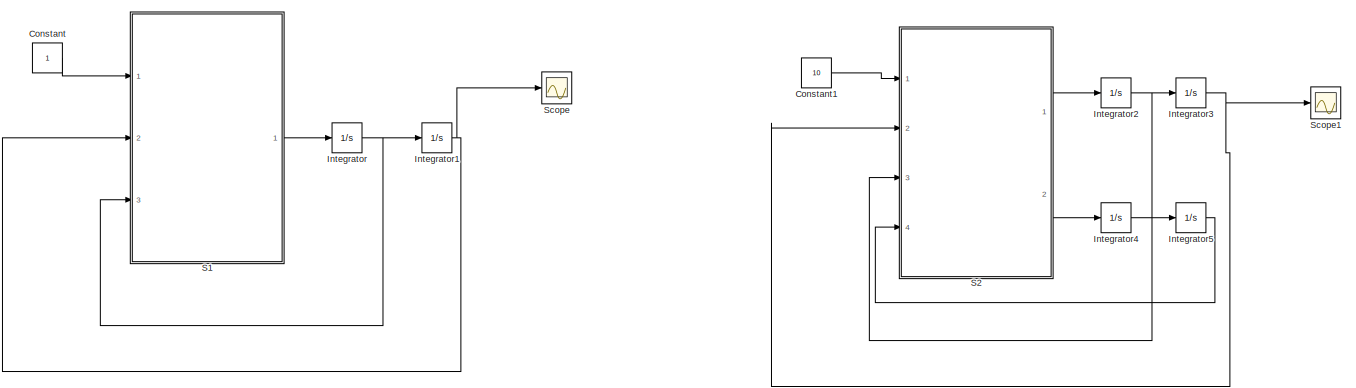
[diagram: root canvas - part 1/3, top left region]
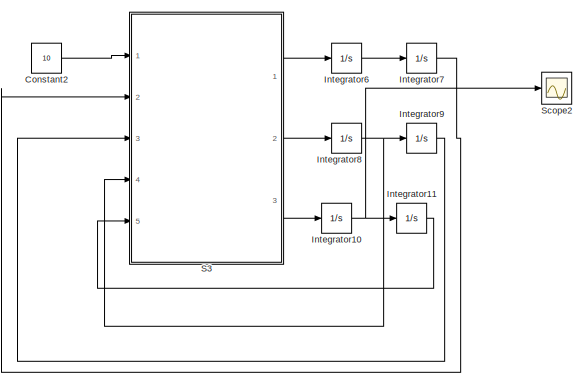
[diagram: root canvas - part 2/3, top right region]
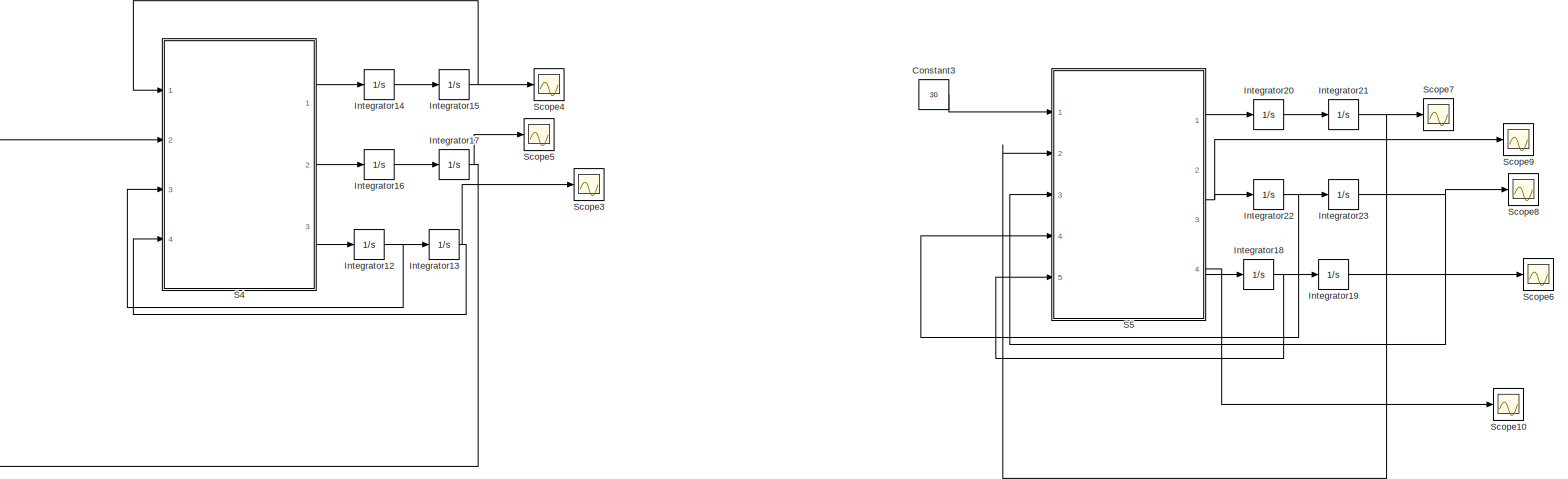
[diagram: root canvas - part 3/3, bottom center region]
MODEL slx_5a770979813c
KIND model
CONFIG AbsTol = auto
CONFIG EnableMultiTasking = off
CONFIG FixedStep = auto
CONFIG MaxStep = auto
CONFIG MinStep = auto
CONFIG RelTol = 1e-3
CONFIG SampleTimeConstraint = Unconstrained
CONFIG Solver = VariableStepAuto
CONFIG SolverName = VariableStepAuto
CONFIG StartTime = 0.0
CONFIG StopTime = 400
BLOCK [Constant] Constant
BLOCK [Constant] Constant1
  Value = 10
BLOCK [Constant] Constant2
  Value = 10
BLOCK [Constant] Constant3
  Value = 30
BLOCK [Integrator] Integrator
  Ports = [1, 1]
BLOCK [Integrator] Integrator1
  Ports = [1, 1]
BLOCK [Integrator] Integrator10
  Ports = [1, 1]
BLOCK [Integrator] Integrator11
  Ports = [1, 1]
BLOCK [Integrator] Integrator12
  Ports = [1, 1]
BLOCK [Integrator] Integrator13
  Ports = [1, 1]
BLOCK [Integrator] Integrator14
  Ports = [1, 1]
BLOCK [Integrator] Integrator15
  Ports = [1, 1]
BLOCK [Integrator] Integrator16
  Ports = [1, 1]
BLOCK [Integrator] Integrator17
  Ports = [1, 1]
BLOCK [Integrator] Integrator18
  Ports = [1, 1]
BLOCK [Integrator] Integrator19
  Ports = [1, 1]
BLOCK [Integrator] Integrator2
  Ports = [1, 1]
BLOCK [Integrator] Integrator20
  Ports = [1, 1]
BLOCK [Integrator] Integrator21
  Ports = [1, 1]
BLOCK [Integrator] Integrator22
  Ports = [1, 1]
BLOCK [Integrator] Integrator23
  Ports = [1, 1]
BLOCK [Integrator] Integrator3
  Ports = [1, 1]
BLOCK [Integrator] Integrator4
  Ports = [1, 1]
BLOCK [Integrator] Integrator5
  Ports = [1, 1]
BLOCK [Integrator] Integrator6
  Ports = [1, 1]
BLOCK [Integrator] Integrator7
  Ports = [1, 1]
BLOCK [Integrator] Integrator8
  Ports = [1, 1]
BLOCK [Integrator] Integrator9
  Ports = [1, 1]
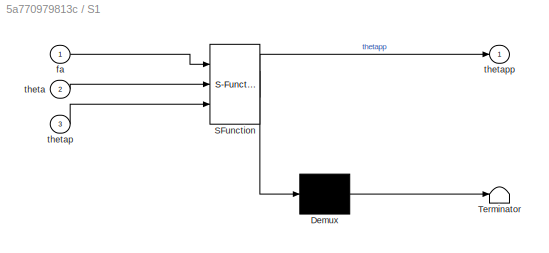
BLOCK [SubSystem] S1
  ErrorFcn = Stateflow.Translate.translate
  PermitHierarchicalResolution = ExplicitOnly
  Ports = [3, 1]
  RequestExecContextInheritance = off
  SFBlockType = MATLAB Function
  TreatAsAtomicUnit = on
BLOCK [Demux] S1/ Demux 
  Outputs = 1
  Ports = [1, 1]
BLOCK [S-Function] S1/ SFunction 
  EnableBusSupport = on
  FunctionName = sf_sfun
  PortCounts = [3 2]
  Ports = [3, 2]
  SFcnIsStateOwnerBlock = off
  SFunctionDeploymentMode = off
  Tag = Stateflow S-Function sistemas_tarea2 2
BLOCK [Terminator] S1/ Terminator 
BLOCK [Inport] S1/fa
  IconDisplay = Port number
BLOCK [Inport] S1/theta
  IconDisplay = Port number
  Port = 2
BLOCK [Inport] S1/thetap
  IconDisplay = Port number
  Port = 3
BLOCK [Outport] S1/thetapp
  IconDisplay = Port number
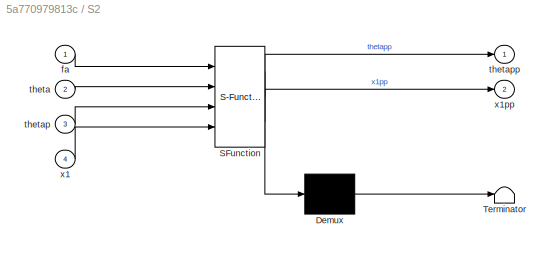
BLOCK [SubSystem] S2
  ErrorFcn = Stateflow.Translate.translate
  PermitHierarchicalResolution = ExplicitOnly
  Ports = [4, 2]
  RequestExecContextInheritance = off
  SFBlockType = MATLAB Function
  TreatAsAtomicUnit = on
BLOCK [Demux] S2/ Demux 
  Outputs = 1
  Ports = [1, 1]
BLOCK [S-Function] S2/ SFunction 
  EnableBusSupport = on
  FunctionName = sf_sfun
  PortCounts = [4 3]
  Ports = [4, 3]
  SFcnIsStateOwnerBlock = off
  SFunctionDeploymentMode = off
  Tag = Stateflow S-Function sistemas_tarea2 1
BLOCK [Terminator] S2/ Terminator 
BLOCK [Inport] S2/fa
  IconDisplay = Port number
BLOCK [Inport] S2/theta
  IconDisplay = Port number
  Port = 2
BLOCK [Inport] S2/thetap
  IconDisplay = Port number
  Port = 3
BLOCK [Outport] S2/thetapp
  IconDisplay = Port number
BLOCK [Inport] S2/x1
  IconDisplay = Port number
  Port = 4
BLOCK [Outport] S2/x1pp
  IconDisplay = Port number
  Port = 2
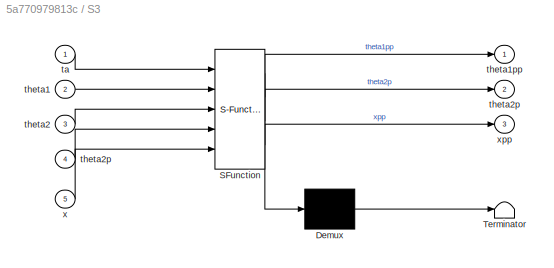
BLOCK [SubSystem] S3
  ErrorFcn = Stateflow.Translate.translate
  PermitHierarchicalResolution = ExplicitOnly
  Ports = [5, 3]
  RequestExecContextInheritance = off
  SFBlockType = MATLAB Function
  TreatAsAtomicUnit = on
BLOCK [Demux] S3/ Demux 
  Outputs = 1
  Ports = [1, 1]
BLOCK [S-Function] S3/ SFunction 
  EnableBusSupport = on
  FunctionName = sf_sfun
  PortCounts = [5 4]
  Ports = [5, 4]
  SFcnIsStateOwnerBlock = off
  SFunctionDeploymentMode = off
  Tag = Stateflow S-Function sistemas_tarea2 3
BLOCK [Terminator] S3/ Terminator 
BLOCK [Inport] S3/ta
  IconDisplay = Port number
BLOCK [Inport] S3/theta1
  IconDisplay = Port number
  Port = 2
BLOCK [Outport] S3/theta1pp
  IconDisplay = Port number
BLOCK [Inport] S3/theta2
  IconDisplay = Port number
  Port = 3
BLOCK [Outport] S3/theta2p
  IconDisplay = Port number
  Port = 2
BLOCK [Inport] S3/theta2p 
  IconDisplay = Port number
  Port = 4
BLOCK [Inport] S3/x
  IconDisplay = Port number
  Port = 5
BLOCK [Outport] S3/xpp
  IconDisplay = Port number
  Port = 3
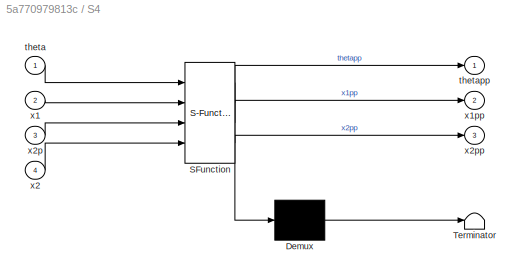
BLOCK [SubSystem] S4
  ErrorFcn = Stateflow.Translate.translate
  PermitHierarchicalResolution = ExplicitOnly
  Ports = [4, 3]
  RequestExecContextInheritance = off
  SFBlockType = MATLAB Function
  TreatAsAtomicUnit = on
BLOCK [Demux] S4/ Demux 
  Outputs = 1
  Ports = [1, 1]
BLOCK [S-Function] S4/ SFunction 
  EnableBusSupport = on
  FunctionName = sf_sfun
  PortCounts = [4 4]
  Ports = [4, 4]
  SFcnIsStateOwnerBlock = off
  SFunctionDeploymentMode = off
  Tag = Stateflow S-Function sistemas_tarea2 4
BLOCK [Terminator] S4/ Terminator 
BLOCK [Inport] S4/theta
  IconDisplay = Port number
BLOCK [Outport] S4/thetapp
  IconDisplay = Port number
BLOCK [Inport] S4/x1
  IconDisplay = Port number
  Port = 2
BLOCK [Outport] S4/x1pp
  IconDisplay = Port number
  Port = 2
BLOCK [Inport] S4/x2
  IconDisplay = Port number
  Port = 4
BLOCK [Inport] S4/x2p
  IconDisplay = Port number
  Port = 3
BLOCK [Outport] S4/x2pp
  IconDisplay = Port number
  Port = 3
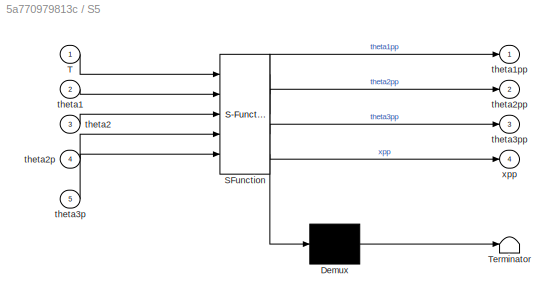
BLOCK [SubSystem] S5
  ErrorFcn = Stateflow.Translate.translate
  PermitHierarchicalResolution = ExplicitOnly
  Ports = [5, 4]
  RequestExecContextInheritance = off
  SFBlockType = MATLAB Function
  TreatAsAtomicUnit = on
BLOCK [Demux] S5/ Demux 
  Outputs = 1
  Ports = [1, 1]
BLOCK [S-Function] S5/ SFunction 
  EnableBusSupport = on
  FunctionName = sf_sfun
  PortCounts = [5 5]
  Ports = [5, 5]
  SFcnIsStateOwnerBlock = off
  SFunctionDeploymentMode = off
  Tag = Stateflow S-Function sistemas_tarea2 5
BLOCK [Terminator] S5/ Terminator 
BLOCK [Inport] S5/T
  IconDisplay = Port number
BLOCK [Inport] S5/theta1
  IconDisplay = Port number
  Port = 2
BLOCK [Outport] S5/theta1pp
  IconDisplay = Port number
BLOCK [Inport] S5/theta2
  IconDisplay = Port number
  Port = 3
BLOCK [Inport] S5/theta2p
  IconDisplay = Port number
  Port = 4
BLOCK [Outport] S5/theta2pp
  IconDisplay = Port number
  Port = 2
BLOCK [Inport] S5/theta3p
  IconDisplay = Port number
  Port = 5
BLOCK [Outport] S5/theta3pp
  IconDisplay = Port number
  Port = 3
BLOCK [Outport] S5/xpp
  IconDisplay = Port number
  Port = 4
BLOCK [Scope] Scope
  Floating = off
  NumInputPorts = 1
  Ports = [1]
  ScopeSpecificationString = Simulink.scopes.TimeScopeBlockCfg('CurrentConfiguration', extmgr.ConfigurationSet(extmgr.Configuration('Core','General UI',true),extmgr.Configuration('Core','Source UI',true),extmgr.Configuration('Sources','WiredSimulink',true),extmgr.Configuration('Visuals','Time Domain',true,'SerializedDisplays',{struct('MinYLimReal','-1.63085','MaxYLimReal','14.67767','YLabelReal','','MinYLimMag','0.00000','Max...<+1393ch>
BLOCK [Scope] Scope1
  Floating = off
  NumInputPorts = 1
  Ports = [1]
  ScopeSpecificationString = Simulink.scopes.TimeScopeBlockCfg('CurrentConfiguration', extmgr.ConfigurationSet(extmgr.Configuration('Core','General UI',true),extmgr.Configuration('Core','Source UI',true),extmgr.Configuration('Sources','WiredSimulink',true,'DataLoggingVariableName','ScopeData1'),extmgr.Configuration('Visuals','Time Domain',true,'SerializedDisplays',{struct('MinYLimReal','-0.10527','MaxYLimReal','0.33026','YLab...<+1428ch>
BLOCK [Scope] Scope10
  Floating = off
  NumInputPorts = 1
  Ports = [1]
  ScopeSpecificationString = Simulink.scopes.TimeScopeBlockCfg('CurrentConfiguration', extmgr.ConfigurationSet(extmgr.Configuration('Core','General UI',true),extmgr.Configuration('Core','Source UI',true),extmgr.Configuration('Sources','WiredSimulink',true,'DataLoggingVariableName','ScopeData1'),extmgr.Configuration('Visuals','Time Domain',true,'SerializedDisplays',{struct('MinYLimReal','-0.01057','MaxYLimReal','0.01263','YLab...<+1467ch>
BLOCK [Scope] Scope2
  Floating = off
  NumInputPorts = 1
  Ports = [1]
  ScopeSpecificationString = Simulink.scopes.TimeScopeBlockCfg('CurrentConfiguration', extmgr.ConfigurationSet(extmgr.Configuration('Core','General UI',true),extmgr.Configuration('Core','Source UI',true),extmgr.Configuration('Sources','WiredSimulink',true,'DataLoggingVariableName','ScopeData2'),extmgr.Configuration('Visuals','Time Domain',true,'SerializedDisplays',{struct('MinYLimReal','-3.39732','MaxYLimReal','3.3974','YLabe...<+1444ch>
BLOCK [Scope] Scope3
  Floating = off
  NumInputPorts = 1
  Ports = [1]
  ScopeSpecificationString = Simulink.scopes.TimeScopeBlockCfg('CurrentConfiguration', extmgr.ConfigurationSet(extmgr.Configuration('Core','General UI',true),extmgr.Configuration('Core','Source UI',true),extmgr.Configuration('Sources','WiredSimulink',true,'DataLoggingVariableName','ScopeData3'),extmgr.Configuration('Visuals','Time Domain',true,'SerializedDisplays',{struct('MinYLimReal','-0.68346','MaxYLimReal','6.15113','YLab...<+1448ch>
BLOCK [Scope] Scope4
  Floating = off
  NumInputPorts = 1
  Ports = [1]
  ScopeSpecificationString = Simulink.scopes.TimeScopeBlockCfg('CurrentConfiguration', extmgr.ConfigurationSet(extmgr.Configuration('Core','General UI',true),extmgr.Configuration('Core','Source UI',true),extmgr.Configuration('Sources','WiredSimulink',true,'DataLoggingVariableName','ScopeData4'),extmgr.Configuration('Visuals','Time Domain',true,'SerializedDisplays',{struct('MinYLimReal','-37.0031','MaxYLimReal','333.02794','YL...<+1454ch>
BLOCK [Scope] Scope5
  Floating = off
  NumInputPorts = 1
  Ports = [1]
  ScopeSpecificationString = Simulink.scopes.TimeScopeBlockCfg('CurrentConfiguration', extmgr.ConfigurationSet(extmgr.Configuration('Core','General UI',true),extmgr.Configuration('Core','Source UI',true),extmgr.Configuration('Sources','WiredSimulink',true,'DataLoggingVariableName','ScopeData5'),extmgr.Configuration('Visuals','Time Domain',true,'SerializedDisplays',{struct('MinYLimReal','-30.0805','MaxYLimReal','270.72446','YL...<+1454ch>
BLOCK [Scope] Scope6
  Floating = off
  NumInputPorts = 1
  Ports = [1]
  ScopeSpecificationString = Simulink.scopes.TimeScopeBlockCfg('CurrentConfiguration', extmgr.ConfigurationSet(extmgr.Configuration('Core','General UI',true),extmgr.Configuration('Core','Source UI',true),extmgr.Configuration('Sources','WiredSimulink',true,'DataLoggingVariableName','ScopeData6'),extmgr.Configuration('Visuals','Time Domain',true,'SerializedDisplays',{struct('MinYLimReal','-1.64627','MaxYLimReal','14.81647','YLa...<+1450ch>
BLOCK [Scope] Scope7
  Floating = off
  NumInputPorts = 1
  Ports = [1]
  ScopeSpecificationString = Simulink.scopes.TimeScopeBlockCfg('CurrentConfiguration', extmgr.ConfigurationSet(extmgr.Configuration('Core','General UI',true),extmgr.Configuration('Core','Source UI',true),extmgr.Configuration('Sources','WiredSimulink',true,'DataLoggingVariableName','ScopeData7'),extmgr.Configuration('Visuals','Time Domain',true,'SerializedDisplays',{struct('MinYLimReal','-37.0031','MaxYLimReal','333.02794','YL...<+1454ch>
BLOCK [Scope] Scope8
  Floating = off
  NumInputPorts = 1
  Ports = [1]
  ScopeSpecificationString = Simulink.scopes.TimeScopeBlockCfg('CurrentConfiguration', extmgr.ConfigurationSet(extmgr.Configuration('Core','General UI',true),extmgr.Configuration('Core','Source UI',true),extmgr.Configuration('Sources','WiredSimulink',true,'DataLoggingVariableName','ScopeData8'),extmgr.Configuration('Visuals','Time Domain',true,'SerializedDisplays',{struct('MinYLimReal','-92.85299','MaxYLimReal','835.67693','Y...<+1456ch>
BLOCK [Scope] Scope9
  Floating = off
  NumInputPorts = 1
  Ports = [1]
  ScopeSpecificationString = Simulink.scopes.TimeScopeBlockCfg('CurrentConfiguration', extmgr.ConfigurationSet(extmgr.Configuration('Core','General UI',true),extmgr.Configuration('Core','Source UI',true),extmgr.Configuration('Sources','WiredSimulink',true,'DataLoggingVariableName','ScopeData1'),extmgr.Configuration('Visuals','Time Domain',true,'SerializedDisplays',{struct('MinYLimReal','-0.00041','MaxYLimReal','0.43525','YLab...<+1401ch>
LINE Constant1:1 -> S2:1
LINE Constant2:1 -> S3:1
LINE Constant3:1 -> S5:1
LINE Constant:1 -> S1:1
NET Integrator10:1 -> Integrator11:1, Scope2:1
LINE Integrator11:1 -> S3:5
NET Integrator12:1 -> Integrator13:1, S4:3
NET Integrator13:1 -> S4:4, Scope3:1
LINE Integrator14:1 -> Integrator15:1
NET Integrator15:1 -> S4:1, Scope4:1
LINE Integrator16:1 -> Integrator17:1
NET Integrator17:1 -> S4:2, Scope5:1
NET Integrator18:1 -> Integrator19:1, S5:5
LINE Integrator19:1 -> Scope6:1
NET Integrator1:1 -> S1:2, Scope:1
LINE Integrator20:1 -> Integrator21:1
NET Integrator21:1 -> S5:2, Scope7:1
NET Integrator22:1 -> Integrator23:1, S5:4
NET Integrator23:1 -> S5:3, Scope8:1
NET Integrator2:1 -> Integrator3:1, S2:3
NET Integrator3:1 -> S2:2, Scope1:1
LINE Integrator4:1 -> Integrator5:1
LINE Integrator5:1 -> S2:4
LINE Integrator6:1 -> Integrator7:1
LINE Integrator7:1 -> S3:2
NET Integrator8:1 -> Integrator9:1, S3:4
LINE Integrator9:1 -> S3:3
NET Integrator:1 -> Integrator1:1, S1:3
LINE S1:1 -> Integrator:1
LINE S2:1 -> Integrator2:1
LINE S2:2 -> Integrator4:1
LINE S3:1 -> Integrator6:1
LINE S3:2 -> Integrator8:1
LINE S3:3 -> Integrator10:1
LINE S4:1 -> Integrator14:1
LINE S4:2 -> Integrator16:1
LINE S4:3 -> Integrator12:1
LINE S5:1 -> Integrator20:1
NET S5:2 -> Integrator22:1, Scope9:1
LINE S5:3 -> Integrator18:1
LINE S5:4 -> Scope10:1
note: NET lines group one-source signal fan-out (src -> all destinations, sorted); 1:1 wires keep LINE
CHART S2 states=1 transitions=1
  STATE_LABEL 'eML_blk_kernel()'
  STATE_LABEL 'SCRIPT:\nfunction [thetapp,x1pp] = fcn(fa,theta,thetap,x1)\n%Parametros\nM=10;\ng=9.8;\nJ=70;\nB=14;\nR=0.1;\nK1=200;\nK2=130;\n\nK1 = 469.34;\nK2 = 200;\nR = 0.1;\n% R2 = R^2;\nB = 50;\nJ = 0.15;\nM = 50;\ng = 9.8;\n%Ecuaciones\n\n% x2pp=fa+M*g-K1*x2-T;\nx2=R*theta;\n% x2pp=R*thetapp;\n% T=fa+M*g-K1*x2-x2pp*M;\nthetapp=(-B*thetap+(fa+M*g-K1*x2)*R-K2*R*(R*theta-x1))/(J+M*R^2);\nx1pp=-K2*(x1-R*theta)-M*g;\n\n'
CHART S1 states=1 transitions=1
  STATE_LABEL 'eML_blk_kernel()'
  STATE_LABEL 'SCRIPT:\nfunction thetapp = fcn(fa,theta,thetap)\n%Parametros\nM=10;\ng=9.8;\nJ=0.2;\nB=14;\nR=0.1;\nK=200;\n\nK=5;\nB=2;\nJ=5;\nR=1;\nM=4;\n\n%Ecuaciones\n\nthetapp=(-B*thetap+(fa+M*g)*R-K*R^2*theta)/(J+M*R^2);\n\n'
CHART S3 states=1 transitions=1
  STATE_LABEL 'eML_blk_kernel()'
  STATE_LABEL 'SCRIPT:\nfunction [theta1pp,theta2p, xpp] = fcn(ta,theta1,theta2,theta2p,x)\n%Parametros\nM=10;\ng=9.8;\nJ1=20;\nJ2=10;\nB=14;\nR=0.1;\nK1=20;\nK2=130;\n%Ecuaciones\nxpp=(-K2*(x-R*theta2)-M*g)/M;\ntheta1pp=(ta-K1*(theta1-theta2))/J1;\ntheta2pp=(-B*theta2p+K2*R*(x-R*theta2)+K1*(theta1-theta2))/J2;\n\n\n'
CHART S4 states=1 transitions=1
  STATE_LABEL 'eML_blk_kernel()'
  STATE_LABEL 'SCRIPT:\nfunction [thetapp,x1pp, x2pp] = fcn(theta,x1,x2p,x2)\n%Parametros\nM1=200;\nM2=1;\ng=9.8;\nJ1=20;\nB=4400;\nR1=0.2;\nR2=0.05;\nK1=7000;\nK2=230;\nK3=300;\n\nM1=50;\nM2=200;\nJ1=40;\nB1=4000;\nK1=1000;\nK2=7000;\nK3=400;\nR1=0.5;\nR2=0.1;\n\n\n\n%Ecuaciones\nthetaA=x2/R2;\nx1pp=(M1*g-K1*(x1-R1*theta))/M1;\nthetapp=(R1*K1*(x1-R1*theta)-K2*(theta-thetaA))/J1;\nx2pp=(M2*g-2*K3*x2-B*x2p+K2*(theta-thetaA)/R2)/M2;\n\n\n'
CHART S5 states=1 transitions=1
  STATE_LABEL 'eML_blk_kernel()'
  STATE_LABEL 'SCRIPT:\nfunction [theta1pp,theta2pp,theta3pp,xpp] = fcn(T,theta1,theta2,theta2p,theta3p)\n%Parametros\nM=20;\ng=0*9.8;\nJ1=200;\nJ2=17;\nJ3=100;\nD3=40;\nB=23;\nr=0.002;\nK1=70;\nK2=23;\n\nJ1 = 200; %kg*m^2\nJ2 = 10; %kg*m^2\nJ3 = 100; %kg*m^2\nM = 10; %kg\nK1 = 7000; %N*m/rad \nK2 = 10; %N/m\nD3 = 400; %N*m*s/rad\nfv = 230; %N*s/m \nr = 0.2; %m\n\n\n\n\n%Ecuaciones\n\ntheta1pp=(T-K1*(theta1-theta2))/J1;\ntheta2pp=(K1*(theta1...<+125ch>'
